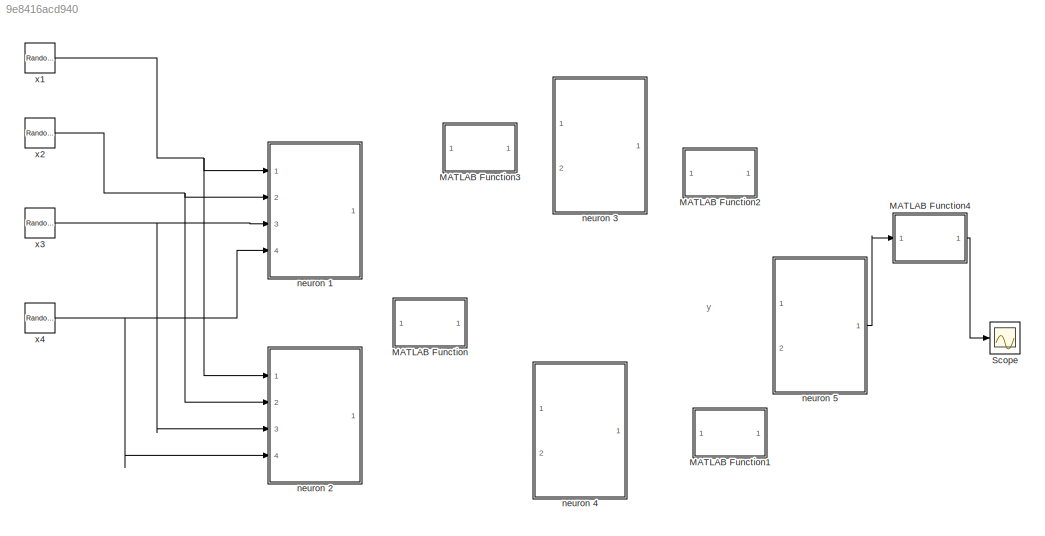
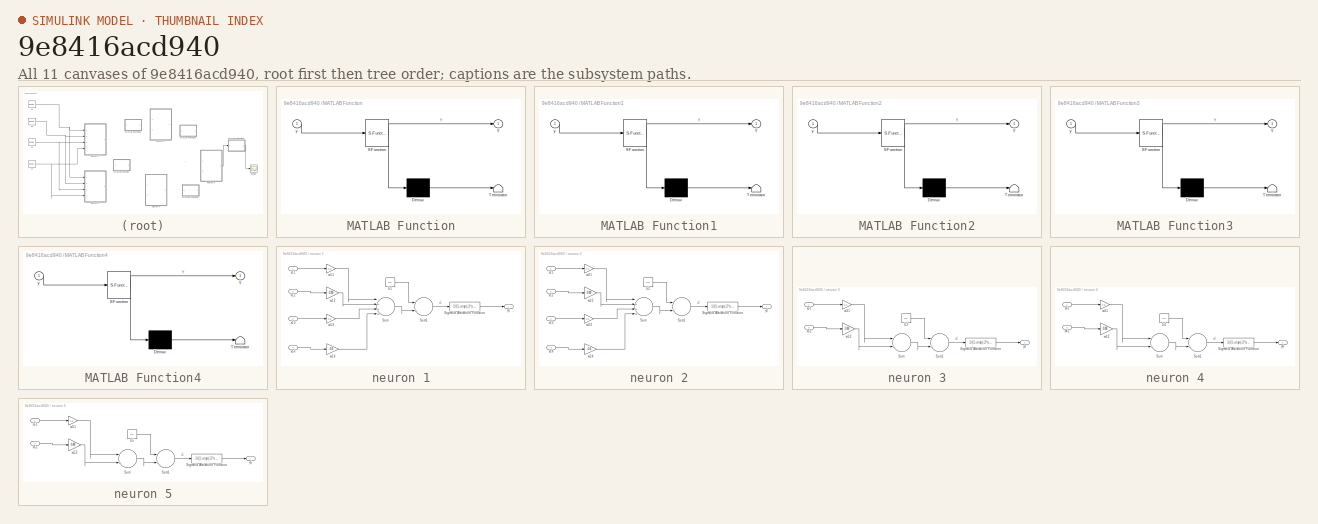
[diagram: thumbnail index - all 11 canvases of the model, root first then tree order]
MODEL slx_9e8416acd940
KIND model
CONFIG AbsTol = auto
CONFIG FixedStep = 0.01
CONFIG MaxStep = auto
CONFIG MinStep = auto
CONFIG RelTol = 1e-3
CONFIG SampleTimeConstraint = Unconstrained
CONFIG Solver = ode3
CONFIG SolverMode = Auto
CONFIG SolverName = ode3
CONFIG StartTime = 0.0
CONFIG StopTime = 5
BLOCK [SubSystem] MATLAB Function
  ErrorFcn = Stateflow.Translate.translate
  PermitHierarchicalResolution = ExplicitOnly
  Ports = [1, 1]
  RequestExecContextInheritance = off
  SFBlockType = MATLAB Function
  TreatAsAtomicUnit = on
BLOCK [Demux] MATLAB Function/ Demux 
  Outputs = 1
  Ports = [1, 1]
BLOCK [S-Function] MATLAB Function/ SFunction 
  EnableBusSupport = on
  FunctionName = sf_sfun
  PortCounts = [1 2]
  Ports = [1, 2]
  Tag = Stateflow S-Function MPModel_FeedforwardNetwork_4GL 2
BLOCK [Terminator] MATLAB Function/ Terminator 
BLOCK [Outport] MATLAB Function/Y
  IconDisplay = Port number
BLOCK [Inport] MATLAB Function/y
  IconDisplay = Port number
BLOCK [SubSystem] MATLAB Function1
  ErrorFcn = Stateflow.Translate.translate
  PermitHierarchicalResolution = ExplicitOnly
  Ports = [1, 1]
  RequestExecContextInheritance = off
  SFBlockType = MATLAB Function
  TreatAsAtomicUnit = on
BLOCK [Demux] MATLAB Function1/ Demux 
  Outputs = 1
  Ports = [1, 1]
BLOCK [S-Function] MATLAB Function1/ SFunction 
  EnableBusSupport = on
  FunctionName = sf_sfun
  PortCounts = [1 2]
  Ports = [1, 2]
  Tag = Stateflow S-Function MPModel_FeedforwardNetwork_4GL 1
BLOCK [Terminator] MATLAB Function1/ Terminator 
BLOCK [Outport] MATLAB Function1/Y
  IconDisplay = Port number
BLOCK [Inport] MATLAB Function1/y
  IconDisplay = Port number
BLOCK [SubSystem] MATLAB Function2
  ErrorFcn = Stateflow.Translate.translate
  PermitHierarchicalResolution = ExplicitOnly
  Ports = [1, 1]
  RequestExecContextInheritance = off
  SFBlockType = MATLAB Function
  TreatAsAtomicUnit = on
BLOCK [Demux] MATLAB Function2/ Demux 
  Outputs = 1
  Ports = [1, 1]
BLOCK [S-Function] MATLAB Function2/ SFunction 
  EnableBusSupport = on
  FunctionName = sf_sfun
  PortCounts = [1 2]
  Ports = [1, 2]
  Tag = Stateflow S-Function MPModel_FeedforwardNetwork_4GL 3
BLOCK [Terminator] MATLAB Function2/ Terminator 
BLOCK [Outport] MATLAB Function2/Y
  IconDisplay = Port number
BLOCK [Inport] MATLAB Function2/y
  IconDisplay = Port number
BLOCK [SubSystem] MATLAB Function3
  ErrorFcn = Stateflow.Translate.translate
  PermitHierarchicalResolution = ExplicitOnly
  Ports = [1, 1]
  RequestExecContextInheritance = off
  SFBlockType = MATLAB Function
  TreatAsAtomicUnit = on
BLOCK [Demux] MATLAB Function3/ Demux 
  Outputs = 1
  Ports = [1, 1]
BLOCK [S-Function] MATLAB Function3/ SFunction 
  EnableBusSupport = on
  FunctionName = sf_sfun
  PortCounts = [1 2]
  Ports = [1, 2]
  Tag = Stateflow S-Function MPModel_FeedforwardNetwork_4GL 4
BLOCK [Terminator] MATLAB Function3/ Terminator 
BLOCK [Outport] MATLAB Function3/Y
  IconDisplay = Port number
BLOCK [Inport] MATLAB Function3/y
  IconDisplay = Port number
BLOCK [SubSystem] MATLAB Function4
  ErrorFcn = Stateflow.Translate.translate
  PermitHierarchicalResolution = ExplicitOnly
  Ports = [1, 1]
  RequestExecContextInheritance = off
  SFBlockType = MATLAB Function
  TreatAsAtomicUnit = on
BLOCK [Demux] MATLAB Function4/ Demux 
  Outputs = 1
  Ports = [1, 1]
BLOCK [S-Function] MATLAB Function4/ SFunction 
  EnableBusSupport = on
  FunctionName = sf_sfun
  PortCounts = [1 2]
  Ports = [1, 2]
  Tag = Stateflow S-Function MPModel_FeedforwardNetwork_4GL 5
BLOCK [Terminator] MATLAB Function4/ Terminator 
BLOCK [Outport] MATLAB Function4/Y
  IconDisplay = Port number
BLOCK [Inport] MATLAB Function4/y
  IconDisplay = Port number
BLOCK [Scope] Scope
  Floating = off
  LimitDataPoints = off
  NumInputPorts = 1
  Ports = [1]
  SampleTime = 0
  SaveName = yk
  SaveToWorkspace = on
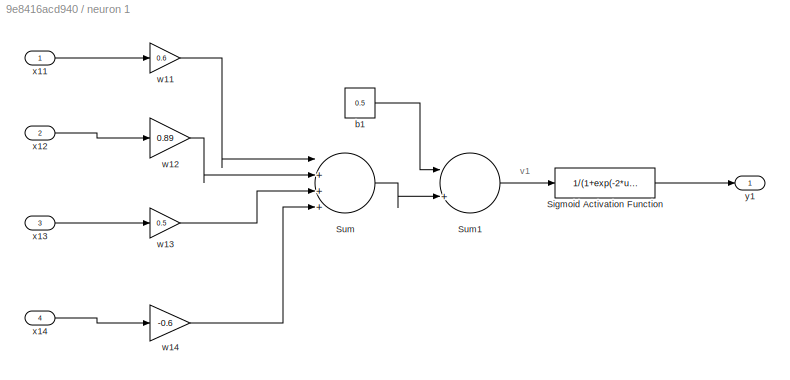
BLOCK [SubSystem] neuron 1
  Ports = [4, 1]
  RequestExecContextInheritance = off
BLOCK [Fcn] neuron 1/Sigmoid Activation Function
  Expr = 1/(1+exp(-2*u))
BLOCK [Sum] neuron 1/Sum
  InputSameDT = off
  Inputs = |++++
  OutDataTypeStr = Inherit: Inherit via internal rule
  Ports = [4, 1]
  SaturateOnIntegerOverflow = off
BLOCK [Sum] neuron 1/Sum1
  InputSameDT = off
  Inputs = |++
  OutDataTypeStr = Inherit: Inherit via internal rule
  Ports = [2, 1]
  SaturateOnIntegerOverflow = off
BLOCK [Constant] neuron 1/b1
  Value = 0.5
BLOCK [Gain] neuron 1/w11
  Gain = 0.6
  OutDataTypeStr = Inherit: Inherit via internal rule
  ParamDataTypeStr = Inherit: Inherit via internal rule
  SaturateOnIntegerOverflow = off
BLOCK [Gain] neuron 1/w12
  Gain = 0.89
  OutDataTypeStr = Inherit: Inherit via internal rule
  ParamDataTypeStr = Inherit: Inherit via internal rule
  SaturateOnIntegerOverflow = off
BLOCK [Gain] neuron 1/w13
  Gain = 0.5
  OutDataTypeStr = Inherit: Inherit via internal rule
  ParamDataTypeStr = Inherit: Inherit via internal rule
  SaturateOnIntegerOverflow = off
BLOCK [Gain] neuron 1/w14
  Gain = -0.6
  OutDataTypeStr = Inherit: Inherit via internal rule
  ParamDataTypeStr = Inherit: Inherit via internal rule
  SaturateOnIntegerOverflow = off
BLOCK [Inport] neuron 1/x11
  IconDisplay = Port number
BLOCK [Inport] neuron 1/x12
  IconDisplay = Port number
  Port = 2
BLOCK [Inport] neuron 1/x13
  IconDisplay = Port number
  Port = 3
BLOCK [Inport] neuron 1/x14
  IconDisplay = Port number
  Port = 4
BLOCK [Outport] neuron 1/y1
  IconDisplay = Port number
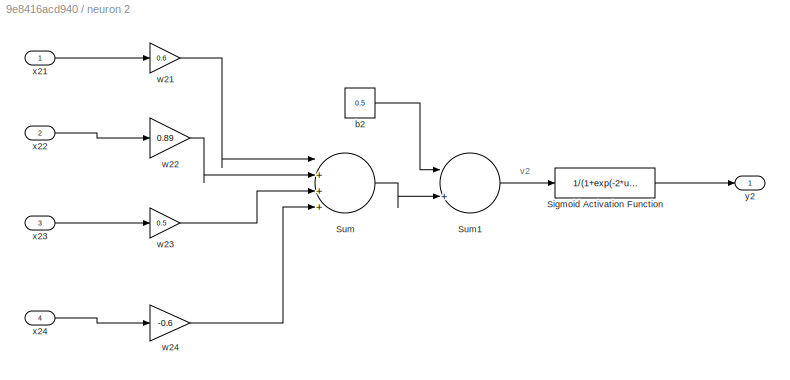
BLOCK [SubSystem] neuron 2
  Ports = [4, 1]
  RequestExecContextInheritance = off
BLOCK [Fcn] neuron 2/Sigmoid Activation Function
  Expr = 1/(1+exp(-2*u))
BLOCK [Sum] neuron 2/Sum
  InputSameDT = off
  Inputs = |++++
  OutDataTypeStr = Inherit: Inherit via internal rule
  Ports = [4, 1]
  SaturateOnIntegerOverflow = off
BLOCK [Sum] neuron 2/Sum1
  InputSameDT = off
  Inputs = |++
  OutDataTypeStr = Inherit: Inherit via internal rule
  Ports = [2, 1]
  SaturateOnIntegerOverflow = off
BLOCK [Constant] neuron 2/b2
  Value = 0.5
BLOCK [Gain] neuron 2/w21
  Gain = 0.6
  OutDataTypeStr = Inherit: Inherit via internal rule
  ParamDataTypeStr = Inherit: Inherit via internal rule
  SaturateOnIntegerOverflow = off
BLOCK [Gain] neuron 2/w22
  Gain = 0.89
  OutDataTypeStr = Inherit: Inherit via internal rule
  ParamDataTypeStr = Inherit: Inherit via internal rule
  SaturateOnIntegerOverflow = off
BLOCK [Gain] neuron 2/w23
  Gain = 0.5
  OutDataTypeStr = Inherit: Inherit via internal rule
  ParamDataTypeStr = Inherit: Inherit via internal rule
  SaturateOnIntegerOverflow = off
BLOCK [Gain] neuron 2/w24
  Gain = -0.6
  OutDataTypeStr = Inherit: Inherit via internal rule
  ParamDataTypeStr = Inherit: Inherit via internal rule
  SaturateOnIntegerOverflow = off
BLOCK [Inport] neuron 2/x21
  IconDisplay = Port number
BLOCK [Inport] neuron 2/x22
  IconDisplay = Port number
  Port = 2
BLOCK [Inport] neuron 2/x23
  IconDisplay = Port number
  Port = 3
BLOCK [Inport] neuron 2/x24
  IconDisplay = Port number
  Port = 4
BLOCK [Outport] neuron 2/y2
  IconDisplay = Port number
BLOCK [SubSystem] neuron 3
  Ports = [2, 1]
  RequestExecContextInheritance = off
BLOCK [Fcn] neuron 3/Sigmoid Activation Function
  Expr = 1/(1+exp(-2*u))
BLOCK [Sum] neuron 3/Sum
  InputSameDT = off
  Inputs = |++
  OutDataTypeStr = Inherit: Inherit via internal rule
  Ports = [2, 1]
  SaturateOnIntegerOverflow = off
BLOCK [Sum] neuron 3/Sum1
  InputSameDT = off
  Inputs = |++
  OutDataTypeStr = Inherit: Inherit via internal rule
  Ports = [2, 1]
  SaturateOnIntegerOverflow = off
BLOCK [Constant] neuron 3/b3
  Value = 0.5
BLOCK [Gain] neuron 3/w31
  Gain = 0.6
  OutDataTypeStr = Inherit: Inherit via internal rule
  ParamDataTypeStr = Inherit: Inherit via internal rule
  SaturateOnIntegerOverflow = off
BLOCK [Gain] neuron 3/w32
  Gain = 0.89
  OutDataTypeStr = Inherit: Inherit via internal rule
  ParamDataTypeStr = Inherit: Inherit via internal rule
  SaturateOnIntegerOverflow = off
BLOCK [Inport] neuron 3/x31
  IconDisplay = Port number
BLOCK [Inport] neuron 3/x32
  IconDisplay = Port number
  Port = 2
BLOCK [Outport] neuron 3/y3
  IconDisplay = Port number
BLOCK [SubSystem] neuron 4
  Ports = [2, 1]
  RequestExecContextInheritance = off
BLOCK [Fcn] neuron 4/Sigmoid Activation Function
  Expr = 1/(1+exp(-2*u))
BLOCK [Sum] neuron 4/Sum
  InputSameDT = off
  Inputs = |++
  OutDataTypeStr = Inherit: Inherit via internal rule
  Ports = [2, 1]
  SaturateOnIntegerOverflow = off
BLOCK [Sum] neuron 4/Sum1
  InputSameDT = off
  Inputs = |++
  OutDataTypeStr = Inherit: Inherit via internal rule
  Ports = [2, 1]
  SaturateOnIntegerOverflow = off
BLOCK [Constant] neuron 4/b4
  Value = 0.5
BLOCK [Gain] neuron 4/w41
  Gain = 0.6
  OutDataTypeStr = Inherit: Inherit via internal rule
  ParamDataTypeStr = Inherit: Inherit via internal rule
  SaturateOnIntegerOverflow = off
BLOCK [Gain] neuron 4/w42
  Gain = 0.89
  OutDataTypeStr = Inherit: Inherit via internal rule
  ParamDataTypeStr = Inherit: Inherit via internal rule
  SaturateOnIntegerOverflow = off
BLOCK [Inport] neuron 4/x41
  IconDisplay = Port number
BLOCK [Inport] neuron 4/x42
  IconDisplay = Port number
  Port = 2
BLOCK [Outport] neuron 4/y4
  IconDisplay = Port number
BLOCK [SubSystem] neuron 5
  Ports = [2, 1]
  RequestExecContextInheritance = off
BLOCK [Fcn] neuron 5/Sigmoid Activation Function
  Expr = 1/(1+exp(-2*u))
BLOCK [Sum] neuron 5/Sum
  InputSameDT = off
  Inputs = |++
  OutDataTypeStr = Inherit: Inherit via internal rule
  Ports = [2, 1]
  SaturateOnIntegerOverflow = off
BLOCK [Sum] neuron 5/Sum1
  InputSameDT = off
  Inputs = |++
  OutDataTypeStr = Inherit: Inherit via internal rule
  Ports = [2, 1]
  SaturateOnIntegerOverflow = off
BLOCK [Constant] neuron 5/b5
  Value = 0.5
BLOCK [Gain] neuron 5/w51
  Gain = 0.6
  OutDataTypeStr = Inherit: Inherit via internal rule
  ParamDataTypeStr = Inherit: Inherit via internal rule
  SaturateOnIntegerOverflow = off
BLOCK [Gain] neuron 5/w52
  Gain = 0.89
  OutDataTypeStr = Inherit: Inherit via internal rule
  ParamDataTypeStr = Inherit: Inherit via internal rule
  SaturateOnIntegerOverflow = off
BLOCK [Inport] neuron 5/x51
  IconDisplay = Port number
BLOCK [Inport] neuron 5/x52
  IconDisplay = Port number
  Port = 2
BLOCK [Outport] neuron 5/y5
  IconDisplay = Port number
BLOCK [RandomNumber] x1
BLOCK [RandomNumber] x2
BLOCK [RandomNumber] x3
BLOCK [RandomNumber] x4
ANNOTATION (root): y
ANNOTATION neuron 1: v1
ANNOTATION neuron 2: v2
ANNOTATION neuron 3: v3
ANNOTATION neuron 4: v4
ANNOTATION neuron 5: v5
LINE MATLAB Function4:1 -> Scope:1
LINE neuron 1/Sigmoid Activation Function:1 -> neuron 1/y1:1
LINE neuron 1/Sum1:1 -> neuron 1/Sigmoid Activation Function:1
LINE neuron 1/Sum:1 -> neuron 1/Sum1:2
LINE neuron 1/b1:1 -> neuron 1/Sum1:1
LINE neuron 1/w11:1 -> neuron 1/Sum:1
LINE neuron 1/w12:1 -> neuron 1/Sum:2
LINE neuron 1/w13:1 -> neuron 1/Sum:3
LINE neuron 1/w14:1 -> neuron 1/Sum:4
LINE neuron 1/x11:1 -> neuron 1/w11:1
LINE neuron 1/x12:1 -> neuron 1/w12:1
LINE neuron 1/x13:1 -> neuron 1/w13:1
LINE neuron 1/x14:1 -> neuron 1/w14:1
LINE neuron 2/Sigmoid Activation Function:1 -> neuron 2/y2:1
LINE neuron 2/Sum1:1 -> neuron 2/Sigmoid Activation Function:1
LINE neuron 2/Sum:1 -> neuron 2/Sum1:2
LINE neuron 2/b2:1 -> neuron 2/Sum1:1
LINE neuron 2/w21:1 -> neuron 2/Sum:1
LINE neuron 2/w22:1 -> neuron 2/Sum:2
LINE neuron 2/w23:1 -> neuron 2/Sum:3
LINE neuron 2/w24:1 -> neuron 2/Sum:4
LINE neuron 2/x21:1 -> neuron 2/w21:1
LINE neuron 2/x22:1 -> neuron 2/w22:1
LINE neuron 2/x23:1 -> neuron 2/w23:1
LINE neuron 2/x24:1 -> neuron 2/w24:1
LINE neuron 3/Sigmoid Activation Function:1 -> neuron 3/y3:1
LINE neuron 3/Sum1:1 -> neuron 3/Sigmoid Activation Function:1
LINE neuron 3/Sum:1 -> neuron 3/Sum1:2
LINE neuron 3/b3:1 -> neuron 3/Sum1:1
LINE neuron 3/w31:1 -> neuron 3/Sum:1
LINE neuron 3/w32:1 -> neuron 3/Sum:2
LINE neuron 3/x31:1 -> neuron 3/w31:1
LINE neuron 3/x32:1 -> neuron 3/w32:1
LINE neuron 4/Sigmoid Activation Function:1 -> neuron 4/y4:1
LINE neuron 4/Sum1:1 -> neuron 4/Sigmoid Activation Function:1
LINE neuron 4/Sum:1 -> neuron 4/Sum1:2
LINE neuron 4/b4:1 -> neuron 4/Sum1:1
LINE neuron 4/w41:1 -> neuron 4/Sum:1
LINE neuron 4/w42:1 -> neuron 4/Sum:2
LINE neuron 4/x41:1 -> neuron 4/w41:1
LINE neuron 4/x42:1 -> neuron 4/w42:1
LINE neuron 5/Sigmoid Activation Function:1 -> neuron 5/y5:1
LINE neuron 5/Sum1:1 -> neuron 5/Sigmoid Activation Function:1
LINE neuron 5/Sum:1 -> neuron 5/Sum1:2
LINE neuron 5/b5:1 -> neuron 5/Sum1:1
LINE neuron 5/w51:1 -> neuron 5/Sum:1
LINE neuron 5/w52:1 -> neuron 5/Sum:2
LINE neuron 5/x51:1 -> neuron 5/w51:1
LINE neuron 5/x52:1 -> neuron 5/w52:1
LINE neuron 5:1 -> MATLAB Function4:1
NET x1:1 -> neuron 1:1, neuron 2:1
NET x2:1 -> neuron 1:2, neuron 2:2
NET x3:1 -> neuron 1:3, neuron 2:3
NET x4:1 -> neuron 1:4, neuron 2:4
note: NET lines group one-source signal fan-out (src -> all destinations, sorted); 1:1 wires keep LINE
CHART MATLAB Function1 states=1 transitions=1
  STATE_LABEL 'eML_blk_kernel()'
  STATE_LABEL "SCRIPT:\nfunction Y = fgl_deriv1( y )\n%#codegen\na=0.5;\nh= 0.01;\n n  = numel(y);\n    J  = 0:(n-1);\n    G1 = gamma( J+1 );\n    G2 = gamma( a+1-J );\n    s  = (-1) .^ J;\n\n    M  = tril( ones(n) );\n    R  = toeplitz( y(:)' );\n    T  = meshgrid( (gamma(a+1)/(h^a)) * s ./ (G1.*G2) );\n    Y  = reshape(sum( R .* M .* T, 2 ), size(y));\n    \n    \nend\n\n"
CHART MATLAB Function states=1 transitions=1
  STATE_LABEL 'eML_blk_kernel()'
  STATE_LABEL "SCRIPT:\nfunction Y = fgl_deriv( y )\n%#codegen\na=0.5;\nh= 0.01;\n n  = numel(y);\n    J  = 0:(n-1);\n    G1 = gamma( J+1 );\n    G2 = gamma( a+1-J );\n    s  = (-1) .^ J;\n\n    M  = tril( ones(n) );\n    R  = toeplitz( y(:)' );\n    T  = meshgrid( (gamma(a+1)/(h^a)) * s ./ (G1.*G2) );\n    Y  = reshape(sum( R .* M .* T, 2 ), size(y));\n    \n    \nend\n\n"
CHART MATLAB Function2 states=1 transitions=1
  STATE_LABEL 'eML_blk_kernel()'
  STATE_LABEL "SCRIPT:\nfunction Y = fgl_deriv2( y )\n%#codegen\na=0.5;\nh= 0.01;\n n  = numel(y);\n    J  = 0:(n-1);\n    G1 = gamma( J+1 );\n    G2 = gamma( a+1-J );\n    s  = (-1) .^ J;\n\n    M  = tril( ones(n) );\n    R  = toeplitz( y(:)' );\n    T  = meshgrid( (gamma(a+1)/(h^a)) * s ./ (G1.*G2) );\n    Y  = reshape(sum( R .* M .* T, 2 ), size(y));\n    \n    \nend\n\n"
CHART MATLAB Function3 states=1 transitions=1
  STATE_LABEL 'eML_blk_kernel()'
  STATE_LABEL "SCRIPT:\nfunction Y = fgl_deriv3( y )\n%#codegen\na=0.5;\nh= 0.01;\n n  = numel(y);\n    J  = 0:(n-1);\n    G1 = gamma( J+1 );\n    G2 = gamma( a+1-J );\n    s  = (-1) .^ J;\n\n    M  = tril( ones(n) );\n    R  = toeplitz( y(:)' );\n    T  = meshgrid( (gamma(a+1)/(h^a)) * s ./ (G1.*G2) );\n    Y  = reshape(sum( R .* M .* T, 2 ), size(y));\n    \n    \nend\n\n"
CHART MATLAB Function4 states=1 transitions=1
  STATE_LABEL 'eML_blk_kernel()'
  STATE_LABEL "SCRIPT:\nfunction Y = fgl_deriv4( y )\n%#codegen\na=0.5;\nh= 0.01;\n n  = numel(y);\n    J  = 0:(n-1);\n    G1 = gamma( J+1 );\n    G2 = gamma( a+1-J );\n    s  = (-1) .^ J;\n\n    M  = tril( ones(n) );\n    R  = toeplitz( y(:)' );\n    T  = meshgrid( (gamma(a+1)/(h^a)) * s ./ (G1.*G2) );\n    Y  = reshape(sum( R .* M .* T, 2 ), size(y));\n    \n    \nend\n\n"
